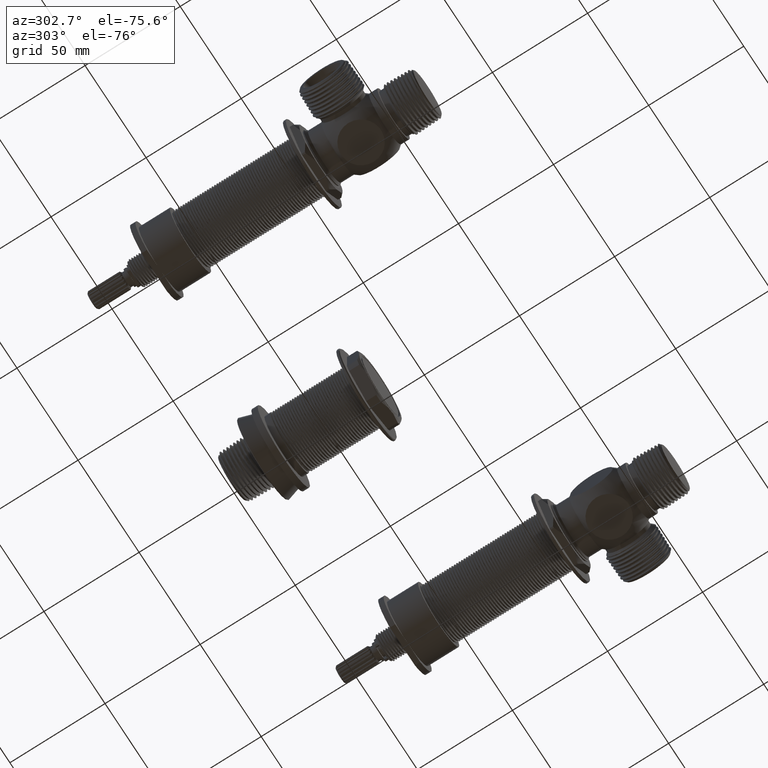
[diagram: clean part render]
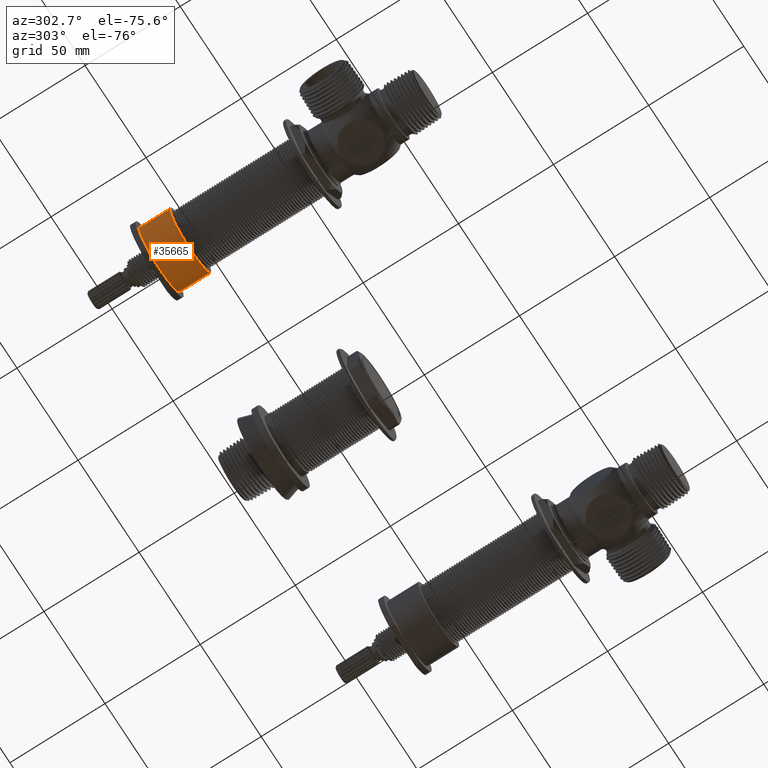
[diagram: same view with one face highlighted and labeled with its STEP entity id]
A machine part, auxiliary view. The second image highlights one B-rep face of the part: STEP entity #35665.
In plain terms, the highlighted cylindrical surface (partial cylindrical patch) has radius 16.9545 mm, axis along (0, -1, 0).
Its self-contained STEP definition (entity closure, byte-faithful):
#3531=CARTESIAN_POINT('',(-4.E0,9.459966141732E-1,0.E0));
#3532=DIRECTION('',(0.E0,1.E0,0.E0));
#3533=DIRECTION('',(0.E0,0.E0,-1.E0));
#3534=AXIS2_PLACEMENT_3D('',#3531,#3532,#3533);
#3583=CARTESIAN_POINT('',(-4.E0,9.459966141732E-1,0.E0));
#3584=DIRECTION('',(0.E0,1.E0,0.E0));
#3585=DIRECTION('',(1.E0,0.E0,0.E0));
#3586=AXIS2_PLACEMENT_3D('',#3583,#3584,#3585);
#3606=DIRECTION('',(0.E0,1.E0,0.E0));
#3607=VECTOR('',#3606,6.4E-1);
#3608=CARTESIAN_POINT('',(-4.6675E0,3.059966141732E-1,0.E0));
#3609=LINE('',#3608,#3607);
#3613=CARTESIAN_POINT('',(-4.E0,3.059966141732E-1,0.E0));
#3614=DIRECTION('',(0.E0,1.E0,0.E0));
#3615=DIRECTION('',(1.E0,0.E0,0.E0));
#3616=AXIS2_PLACEMENT_3D('',#3613,#3614,#3615);
#3621=DIRECTION('',(0.E0,1.E0,0.E0));
#3622=VECTOR('',#3621,6.4E-1);
#3623=CARTESIAN_POINT('',(-3.3325E0,3.059966141732E-1,0.E0));
#3624=LINE('',#3623,#3622);
#31879=CARTESIAN_POINT('',(-3.3325E0,3.059966141732E-1,0.E0));
#31880=CARTESIAN_POINT('',(-3.3325E0,9.459966141732E-1,0.E0));
#31881=VERTEX_POINT('',#31879);
#31882=VERTEX_POINT('',#31880);
#31883=CARTESIAN_POINT('',(-4.6675E0,3.059966141732E-1,0.E0));
#31884=CARTESIAN_POINT('',(-4.6675E0,9.459966141732E-1,0.E0));
#31885=VERTEX_POINT('',#31883);
#31886=VERTEX_POINT('',#31884);
#31888=CARTESIAN_POINT('',(-4.E0,9.459966141732E-1,-6.675E-1));
#31890=VERTEX_POINT('',#31888);
#35650=CARTESIAN_POINT('',(-4.E0,1.093496614173E0,0.E0));
#35651=DIRECTION('',(0.E0,-1.E0,0.E0));
#35652=DIRECTION('',(-1.E0,0.E0,0.E0));
#35653=AXIS2_PLACEMENT_3D('',#35650,#35651,#35652);
#35654=CYLINDRICAL_SURFACE('',#35653,6.675E-1);
#35655=ORIENTED_EDGE('',*,*,#35634,.T.);
#35656=ORIENTED_EDGE('',*,*,#35567,.T.);
#35658=ORIENTED_EDGE('',*,*,#35657,.F.);
#35660=ORIENTED_EDGE('',*,*,#35659,.F.);
#35662=ORIENTED_EDGE('',*,*,#35661,.T.);
#35663=EDGE_LOOP('',(#35655,#35656,#35658,#35660,#35662));
#35664=FACE_OUTER_BOUND('',#35663,.F.);
#3535=CIRCLE('',#3534,6.675E-1);
#3587=CIRCLE('',#3586,6.675E-1);
#3617=CIRCLE('',#3616,6.675E-1);
#35567=EDGE_CURVE('',#31890,#31886,#3535,.T.);
#35634=EDGE_CURVE('',#31882,#31890,#3587,.T.);
#35657=EDGE_CURVE('',#31885,#31886,#3609,.T.);
#35659=EDGE_CURVE('',#31881,#31885,#3617,.T.);
#35661=EDGE_CURVE('',#31881,#31882,#3624,.T.);
#35665=ADVANCED_FACE('',(#35664),#35654,.T.);